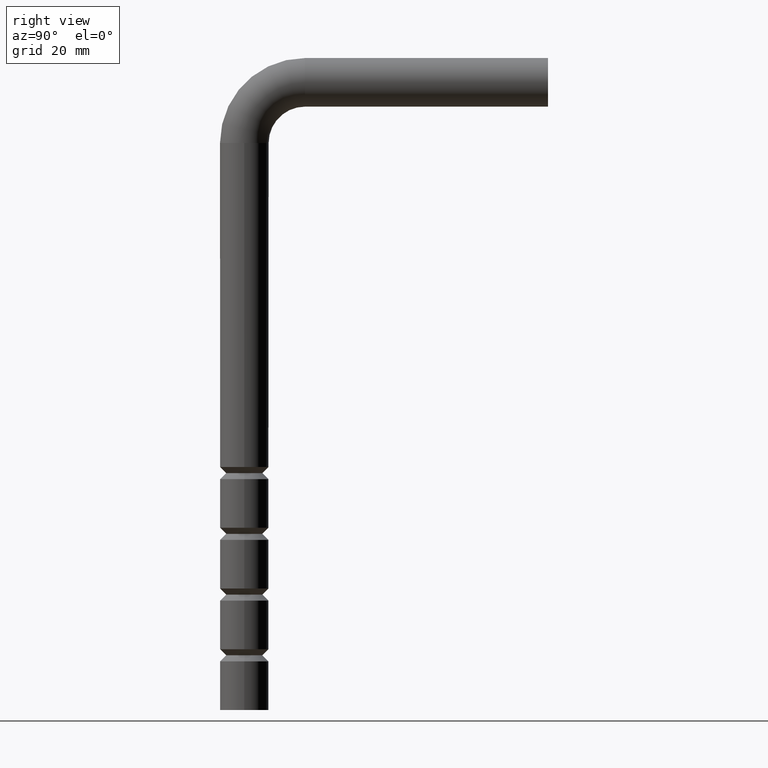
[diagram: clean part render]
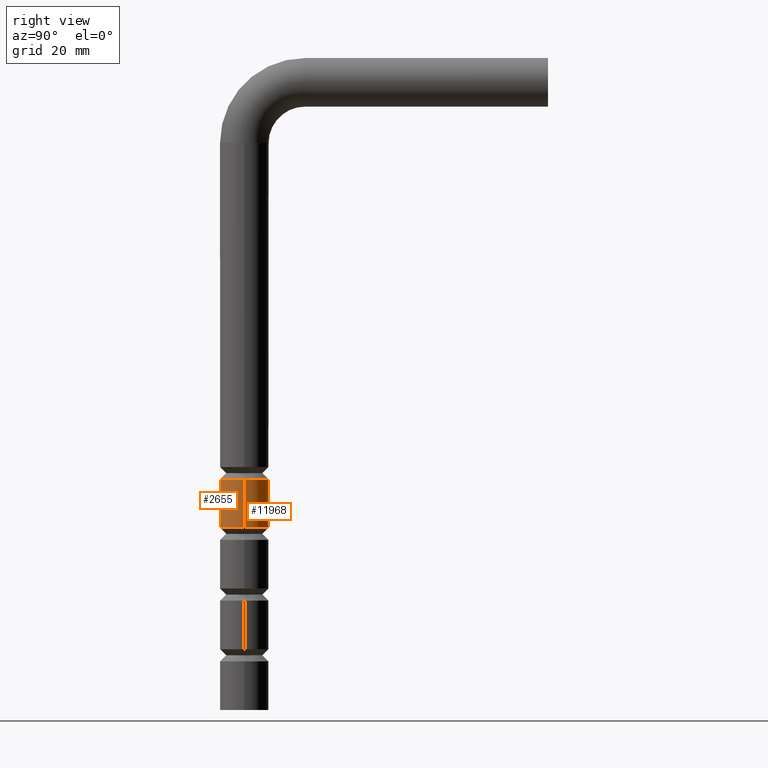
[diagram: same view with one multi-face feature highlighted, each face labeled with its STEP entity id]
A machine part, right view. The highlighted faces form ONE feature: a constant-radius fillet chain: 2 tangent blend faces with common blend radius 6 mm. The faces share edges in the B-rep.
Their STEP definitions:
[1] entity #11968 (Cylinder):
#19 = LINE ( 'NONE', #9105, #10511 ) ;
#44 = LINE ( 'NONE', #13098, #11184 ) ;
#369 = CIRCLE ( 'NONE', #7202, 5.999999999999790390 ) ;
#674 = CARTESIAN_POINT ( 'NONE',  ( -5.999999999999686473, 0.000000000000000000, 56.99999999999999289 ) ) ;
#754 = EDGE_CURVE ( 'NONE', #8733, #12002, #369, .T. ) ;
#968 = FACE_OUTER_BOUND ( 'NONE', #2820, .T. ) ;
#1528 = DIRECTION ( 'NONE',  ( -0.000000000000000000, -0.000000000000000000, -1.000000000000000000 ) ) ;
#1851 = ORIENTED_EDGE ( 'NONE', *, *, #6951, .T. ) ;
#2245 = CYLINDRICAL_SURFACE ( 'NONE', #4591, 6.000000000000000888 ) ;
#2491 = DIRECTION ( 'NONE',  ( -1.000000000000000000, 0.000000000000000000, 0.000000000000000000 ) ) ;
#2820 = EDGE_LOOP ( 'NONE', ( #1851, #10140, #13153, #7728 ) ) ;
#3015 = VERTEX_POINT ( 'NONE', #674 ) ;
#3022 = DIRECTION ( 'NONE',  ( 0.000000000000000000, 0.000000000000000000, -1.000000000000000000 ) ) ;
#3134 = VERTEX_POINT ( 'NONE', #11077 ) ;
#3367 = CIRCLE ( 'NONE', #5534, 5.999999999999686473 ) ;
#4276 = CARTESIAN_POINT ( 'NONE',  ( -5.999999999999790390, 0.000000000000000000, 45.00000000000000000 ) ) ;
#4591 = AXIS2_PLACEMENT_3D ( 'NONE', #6625, #8585, #2491 ) ;
#4625 = DIRECTION ( 'NONE',  ( -1.000000000000000000, 0.000000000000000000, 0.000000000000000000 ) ) ;
#5534 = AXIS2_PLACEMENT_3D ( 'NONE', #9740, #1528, #4625 ) ;
#5925 = DIRECTION ( 'NONE',  ( 0.000000000000000000, 0.000000000000000000, -1.000000000000000000 ) ) ;
#6625 = CARTESIAN_POINT ( 'NONE',  ( 0.000000000000000000, 0.000000000000000000, 140.0000000000000000 ) ) ;
#6951 = EDGE_CURVE ( 'NONE', #3015, #3134, #3367, .T. ) ;
#7032 = EDGE_CURVE ( 'NONE', #3015, #8733, #44, .T. ) ;
#7202 = AXIS2_PLACEMENT_3D ( 'NONE', #11116, #9994, #13168 ) ;
#7728 = ORIENTED_EDGE ( 'NONE', *, *, #7032, .F. ) ;
#8585 = DIRECTION ( 'NONE',  ( 0.000000000000000000, 0.000000000000000000, -1.000000000000000000 ) ) ;
#8733 = VERTEX_POINT ( 'NONE', #4276 ) ;
#9105 = CARTESIAN_POINT ( 'NONE',  ( 6.000000000000000888, 7.347880794884120722E-16, 140.0000000000000000 ) ) ;
#9740 = CARTESIAN_POINT ( 'NONE',  ( 0.000000000000000000, 0.000000000000000000, 56.99999999999999289 ) ) ;
#9994 = DIRECTION ( 'NONE',  ( -0.000000000000000000, -0.000000000000000000, -1.000000000000000000 ) ) ;
#10140 = ORIENTED_EDGE ( 'NONE', *, *, #11041, .T. ) ;
#10511 = VECTOR ( 'NONE', #3022, 1000.000000000000000 ) ;
#11041 = EDGE_CURVE ( 'NONE', #3134, #12002, #19, .T. ) ;
#11077 = CARTESIAN_POINT ( 'NONE',  ( 5.999999999999686473, 7.347880794883735166E-16, 56.99999999999999289 ) ) ;
#11116 = CARTESIAN_POINT ( 'NONE',  ( 0.000000000000000000, 0.000000000000000000, 45.00000000000000000 ) ) ;
#11184 = VECTOR ( 'NONE', #5925, 1000.000000000000000 ) ;
#11968 = ADVANCED_FACE ( 'NONE', ( #968 ), #2245, .T. ) ;
#12002 = VERTEX_POINT ( 'NONE', #12871 ) ;
#12871 = CARTESIAN_POINT ( 'NONE',  ( 5.999999999999790390, 7.347880794883990560E-16, 45.00000000000000000 ) ) ;
#13098 = CARTESIAN_POINT ( 'NONE',  ( -6.000000000000000888, 0.000000000000000000, 140.0000000000000000 ) ) ;
#13153 = ORIENTED_EDGE ( 'NONE', *, *, #754, .F. ) ;
#13168 = DIRECTION ( 'NONE',  ( -1.000000000000000000, 0.000000000000000000, 0.000000000000000000 ) ) ;
[2] entity #2655 (Cylinder):
#19 = LINE ( 'NONE', #9105, #10511 ) ;
#44 = LINE ( 'NONE', #13098, #11184 ) ;
#352 = DIRECTION ( 'NONE',  ( -1.000000000000000000, 0.000000000000000000, 0.000000000000000000 ) ) ;
#674 = CARTESIAN_POINT ( 'NONE',  ( -5.999999999999686473, 0.000000000000000000, 56.99999999999999289 ) ) ;
#1324 = CIRCLE ( 'NONE', #4652, 5.999999999999790390 ) ;
#1694 = EDGE_CURVE ( 'NONE', #12002, #8733, #1324, .T. ) ;
#2158 = ORIENTED_EDGE ( 'NONE', *, *, #11041, .F. ) ;
#2655 = ADVANCED_FACE ( 'NONE', ( #13185 ), #9180, .T. ) ;
#2660 = CARTESIAN_POINT ( 'NONE',  ( 0.000000000000000000, 0.000000000000000000, 56.99999999999999289 ) ) ;
#2876 = ORIENTED_EDGE ( 'NONE', *, *, #7032, .T. ) ;
#3015 = VERTEX_POINT ( 'NONE', #674 ) ;
#3022 = DIRECTION ( 'NONE',  ( 0.000000000000000000, 0.000000000000000000, -1.000000000000000000 ) ) ;
#3134 = VERTEX_POINT ( 'NONE', #11077 ) ;
#3667 = DIRECTION ( 'NONE',  ( -1.000000000000000000, 0.000000000000000000, 0.000000000000000000 ) ) ;
#3752 = DIRECTION ( 'NONE',  ( -0.000000000000000000, -0.000000000000000000, -1.000000000000000000 ) ) ;
#3849 = CIRCLE ( 'NONE', #11759, 5.999999999999686473 ) ;
#4276 = CARTESIAN_POINT ( 'NONE',  ( -5.999999999999790390, 0.000000000000000000, 45.00000000000000000 ) ) ;
#4397 = CARTESIAN_POINT ( 'NONE',  ( 0.000000000000000000, 0.000000000000000000, 140.0000000000000000 ) ) ;
#4652 = AXIS2_PLACEMENT_3D ( 'NONE', #7491, #12582, #352 ) ;
#4829 = ORIENTED_EDGE ( 'NONE', *, *, #9843, .T. ) ;
#5289 = DIRECTION ( 'NONE',  ( -1.000000000000000000, 0.000000000000000000, 0.000000000000000000 ) ) ;
#5355 = EDGE_LOOP ( 'NONE', ( #2158, #4829, #2876, #8198 ) ) ;
#5925 = DIRECTION ( 'NONE',  ( 0.000000000000000000, 0.000000000000000000, -1.000000000000000000 ) ) ;
#6273 = DIRECTION ( 'NONE',  ( 0.000000000000000000, 0.000000000000000000, -1.000000000000000000 ) ) ;
#7032 = EDGE_CURVE ( 'NONE', #3015, #8733, #44, .T. ) ;
#7491 = CARTESIAN_POINT ( 'NONE',  ( 0.000000000000000000, 0.000000000000000000, 45.00000000000000000 ) ) ;
#8198 = ORIENTED_EDGE ( 'NONE', *, *, #1694, .F. ) ;
#8733 = VERTEX_POINT ( 'NONE', #4276 ) ;
#9105 = CARTESIAN_POINT ( 'NONE',  ( 6.000000000000000888, 7.347880794884120722E-16, 140.0000000000000000 ) ) ;
#9180 = CYLINDRICAL_SURFACE ( 'NONE', #11607, 6.000000000000000888 ) ;
#9843 = EDGE_CURVE ( 'NONE', #3134, #3015, #3849, .T. ) ;
#10511 = VECTOR ( 'NONE', #3022, 1000.000000000000000 ) ;
#11041 = EDGE_CURVE ( 'NONE', #3134, #12002, #19, .T. ) ;
#11077 = CARTESIAN_POINT ( 'NONE',  ( 5.999999999999686473, 7.347880794883735166E-16, 56.99999999999999289 ) ) ;
#11184 = VECTOR ( 'NONE', #5925, 1000.000000000000000 ) ;
#11607 = AXIS2_PLACEMENT_3D ( 'NONE', #4397, #6273, #5289 ) ;
#11759 = AXIS2_PLACEMENT_3D ( 'NONE', #2660, #3752, #3667 ) ;
#12002 = VERTEX_POINT ( 'NONE', #12871 ) ;
#12582 = DIRECTION ( 'NONE',  ( -0.000000000000000000, -0.000000000000000000, -1.000000000000000000 ) ) ;
#12871 = CARTESIAN_POINT ( 'NONE',  ( 5.999999999999790390, 7.347880794883990560E-16, 45.00000000000000000 ) ) ;
#13098 = CARTESIAN_POINT ( 'NONE',  ( -6.000000000000000888, 0.000000000000000000, 140.0000000000000000 ) ) ;
#13185 = FACE_OUTER_BOUND ( 'NONE', #5355, .T. ) ;